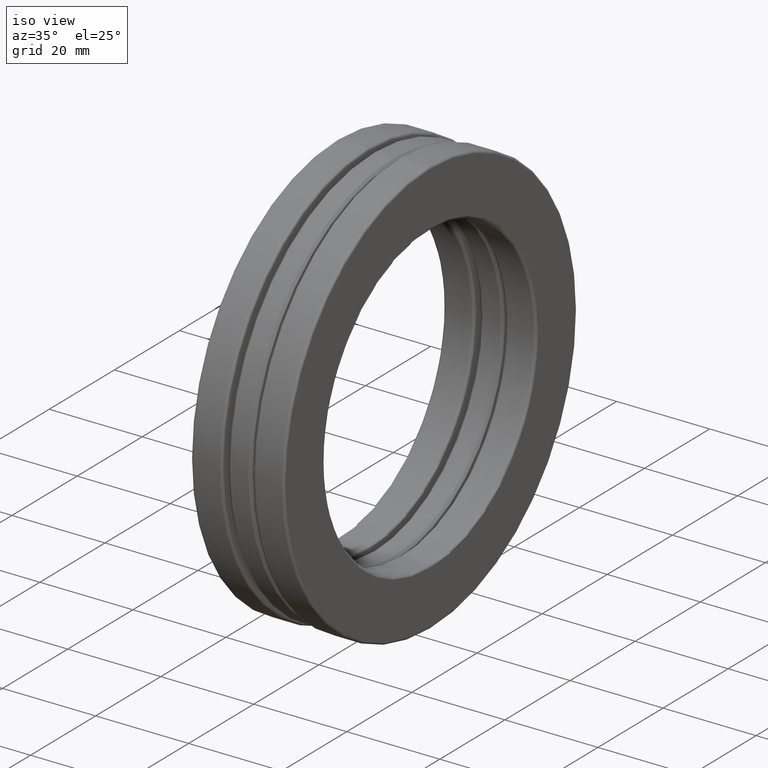
[diagram: clean part render]
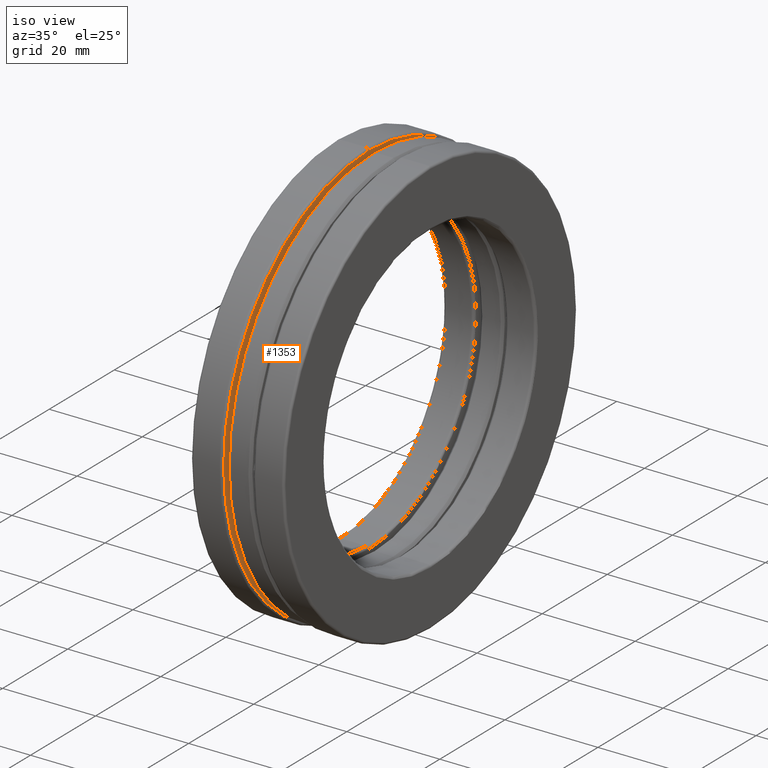
[diagram: same view with one face highlighted and labeled with its STEP entity id]
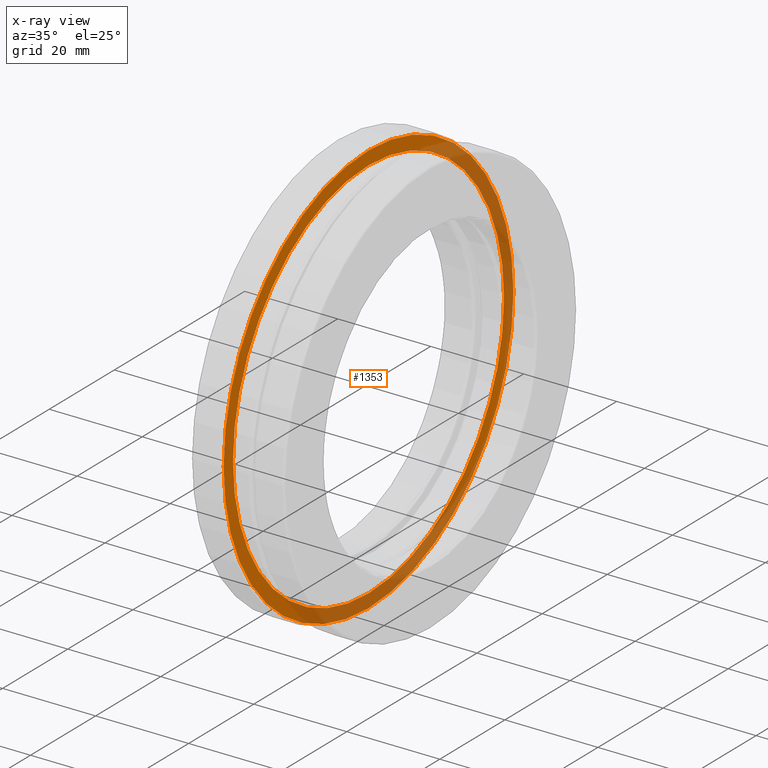
[diagram: x-ray of the same camera — body ghosted, the highlighted face saturated]
A machine part, iso view. The second image highlights one B-rep face of the part: STEP entity #1353.
The next image is the same camera in x-ray: the body ghosted, the highlighted face saturated — about 41% of this face is hidden behind the body in this view.
In plain terms, the highlighted planar face has unit normal (1, 0, 0).
Its self-contained STEP definition (entity closure, byte-faithful):
#5 = DIRECTION ( 'NONE',  ( 0.0000000000000000000, 0.0000000000000000000, 1.000000000000000000 ) ) ;
#89 = CIRCLE ( 'NONE', #750, 1.637655653666288735 ) ;
#135 = DIRECTION ( 'NONE',  ( -1.000000000000000000, -0.0000000000000000000, -0.0000000000000000000 ) ) ;
#181 = DIRECTION ( 'NONE',  ( -1.000000000000000000, -0.0000000000000000000, -0.0000000000000000000 ) ) ;
#251 = EDGE_LOOP ( 'NONE', ( #1398, #1522 ) ) ;
#318 = EDGE_LOOP ( 'NONE', ( #567, #1552 ) ) ;
#320 = CARTESIAN_POINT ( 'NONE',  ( -0.1311692899999997997, 0.0000000000000000000, 0.0000000000000000000 ) ) ;
#324 = DIRECTION ( 'NONE',  ( 0.0000000000000000000, 0.0000000000000000000, 1.000000000000000000 ) ) ;
#376 = DIRECTION ( 'NONE',  ( 1.000000000000000000, 0.0000000000000000000, 0.0000000000000000000 ) ) ;
#412 = VERTEX_POINT ( 'NONE', #1202 ) ;
#538 = CARTESIAN_POINT ( 'NONE',  ( -0.1311692899999997997, 0.0000000000000000000, 0.0000000000000000000 ) ) ;
#567 = ORIENTED_EDGE ( 'NONE', *, *, #1743, .T. ) ;
#641 = AXIS2_PLACEMENT_3D ( 'NONE', #320, #1420, #1444 ) ;
#672 = CARTESIAN_POINT ( 'NONE',  ( -0.1311692899999997997, 0.0000000000000000000, 0.0000000000000000000 ) ) ;
#673 = FACE_BOUND ( 'NONE', #318, .T. ) ;
#705 = CARTESIAN_POINT ( 'NONE',  ( -0.1311692899999997997, 2.005549754367986597E-16, -1.637655653666288735 ) ) ;
#750 = AXIS2_PLACEMENT_3D ( 'NONE', #672, #135, #1797 ) ;
#825 = DIRECTION ( 'NONE',  ( -1.000000000000000000, -0.0000000000000000000, -0.0000000000000000000 ) ) ;
#886 = CIRCLE ( 'NONE', #887, 1.751499999999999835 ) ;
#887 = AXIS2_PLACEMENT_3D ( 'NONE', #1572, #181, #324 ) ;
#959 = VERTEX_POINT ( 'NONE', #705 ) ;
#1086 = VERTEX_POINT ( 'NONE', #1414 ) ;
#1095 = FACE_OUTER_BOUND ( 'NONE', #251, .T. ) ;
#1150 = AXIS2_PLACEMENT_3D ( 'NONE', #1467, #376, #1330 ) ;
#1202 = CARTESIAN_POINT ( 'NONE',  ( -0.1311692899999997997, 0.0000000000000000000, 1.751499999999999835 ) ) ;
#1330 = DIRECTION ( 'NONE',  ( 0.0000000000000000000, 0.0000000000000000000, -1.000000000000000000 ) ) ;
#1353 = ADVANCED_FACE ( 'NONE', ( #673, #1095 ), #1615, .T. ) ;
#1398 = ORIENTED_EDGE ( 'NONE', *, *, #1719, .F. ) ;
#1408 = CIRCLE ( 'NONE', #641, 1.637655653666288735 ) ;
#1414 = CARTESIAN_POINT ( 'NONE',  ( -0.1311692899999997997, 0.0000000000000000000, 1.637655653666288735 ) ) ;
#1420 = DIRECTION ( 'NONE',  ( -1.000000000000000000, -0.0000000000000000000, -0.0000000000000000000 ) ) ;
#1435 = EDGE_CURVE ( 'NONE', #959, #1086, #89, .T. ) ;
#1444 = DIRECTION ( 'NONE',  ( 0.0000000000000000000, 0.0000000000000000000, 1.000000000000000000 ) ) ;
#1449 = VERTEX_POINT ( 'NONE', #1652 ) ;
#1452 = EDGE_CURVE ( 'NONE', #1449, #412, #1675, .T. ) ;
#1467 = CARTESIAN_POINT ( 'NONE',  ( -0.1311692899999997997, 0.0000000000000000000, 0.0000000000000000000 ) ) ;
#1522 = ORIENTED_EDGE ( 'NONE', *, *, #1452, .F. ) ;
#1552 = ORIENTED_EDGE ( 'NONE', *, *, #1435, .T. ) ;
#1572 = CARTESIAN_POINT ( 'NONE',  ( -0.1311692899999997997, 0.0000000000000000000, 0.0000000000000000000 ) ) ;
#1615 = PLANE ( 'NONE',  #1150 ) ;
#1627 = AXIS2_PLACEMENT_3D ( 'NONE', #538, #825, #5 ) ;
#1652 = CARTESIAN_POINT ( 'NONE',  ( -0.1311692899999997997, 2.157215336698062520E-16, -1.751499999999999835 ) ) ;
#1675 = CIRCLE ( 'NONE', #1627, 1.751499999999999835 ) ;
#1719 = EDGE_CURVE ( 'NONE', #412, #1449, #886, .T. ) ;
#1743 = EDGE_CURVE ( 'NONE', #1086, #959, #1408, .T. ) ;
#1797 = DIRECTION ( 'NONE',  ( 0.0000000000000000000, 0.0000000000000000000, 1.000000000000000000 ) ) ;